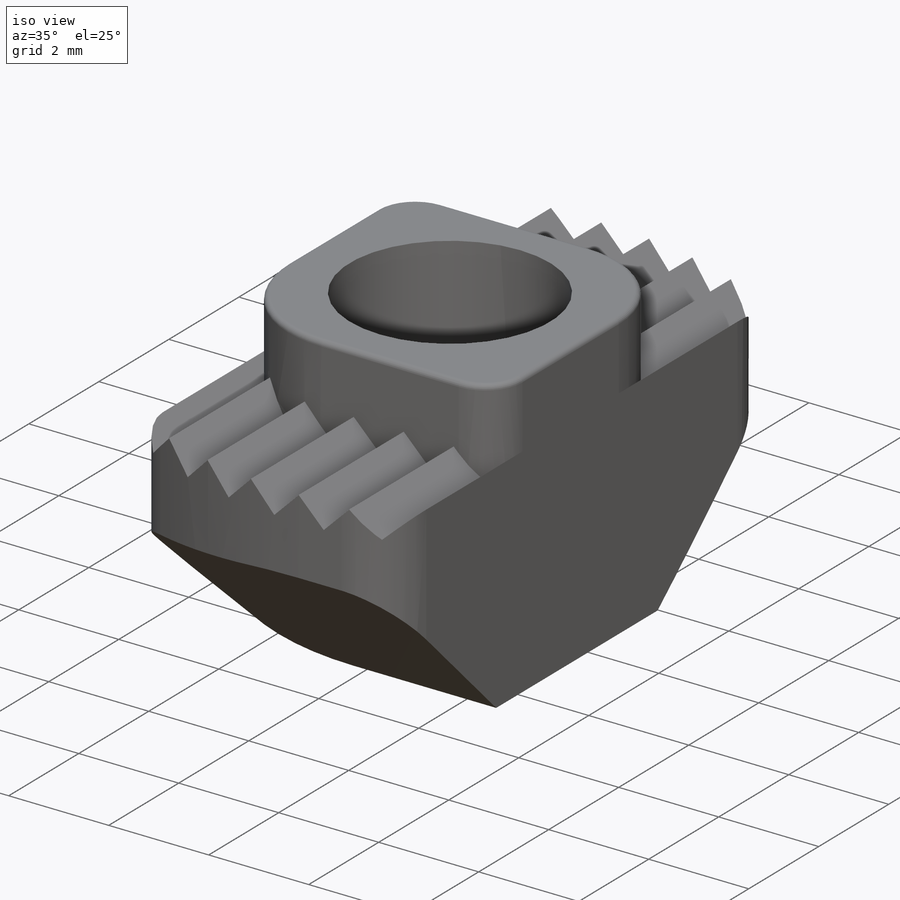
[diagram: iso view]
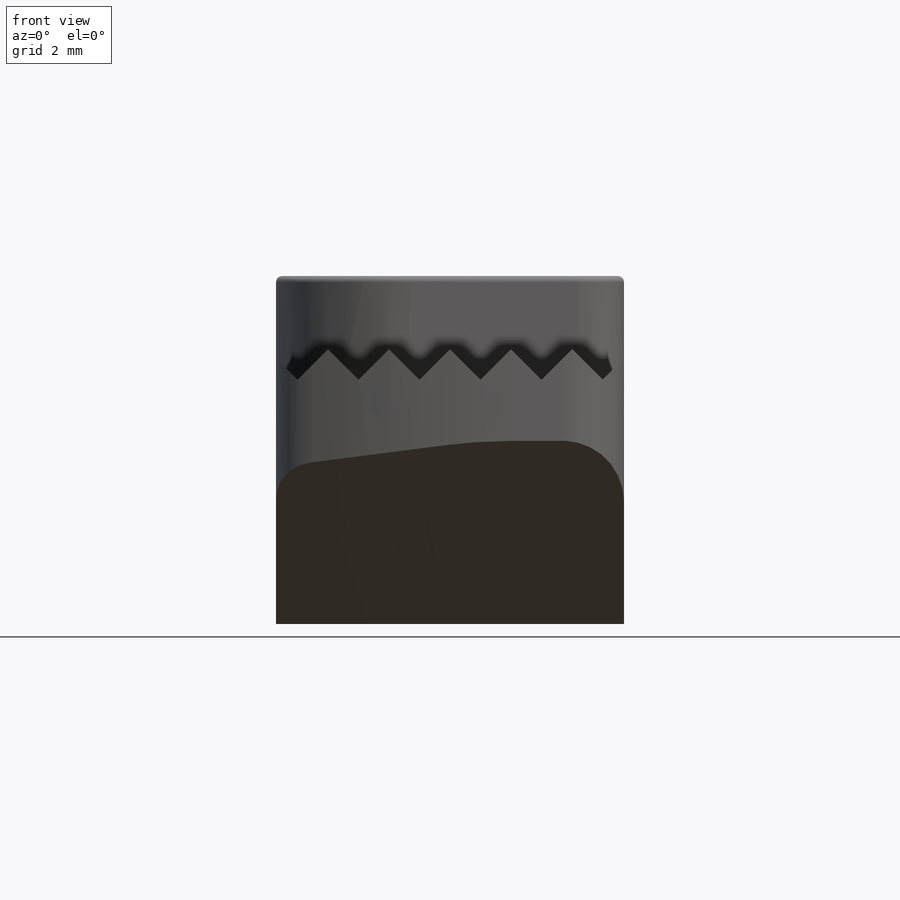
[diagram: front view]
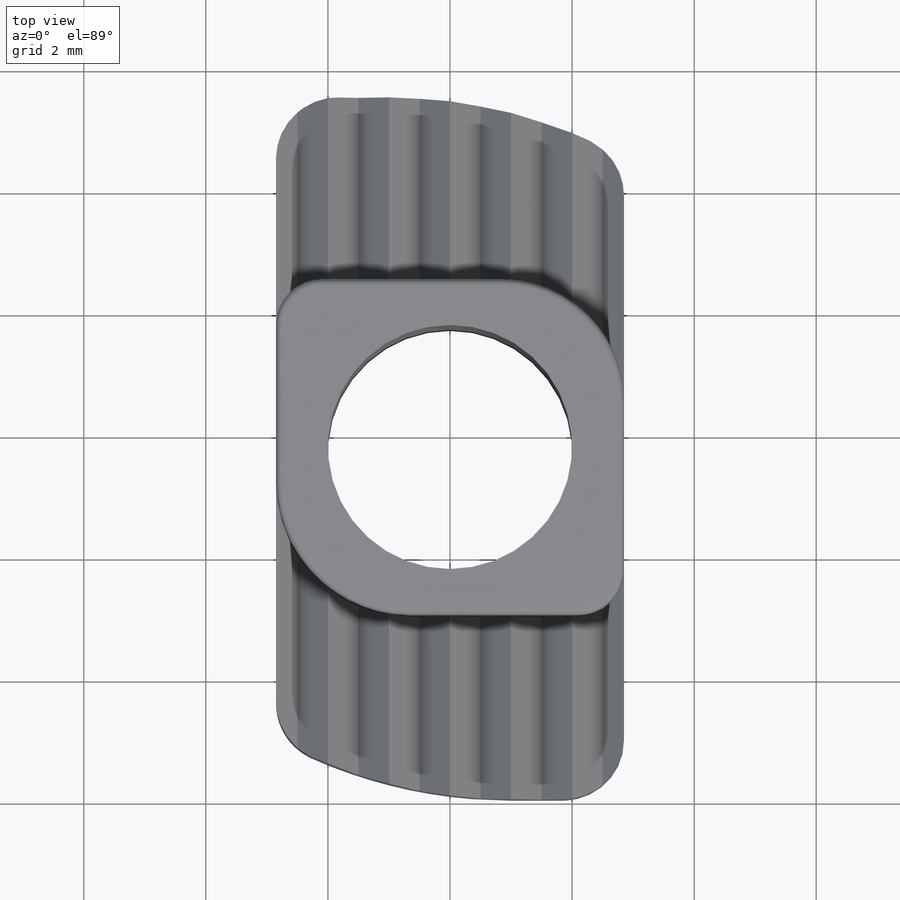
[diagram: top view]
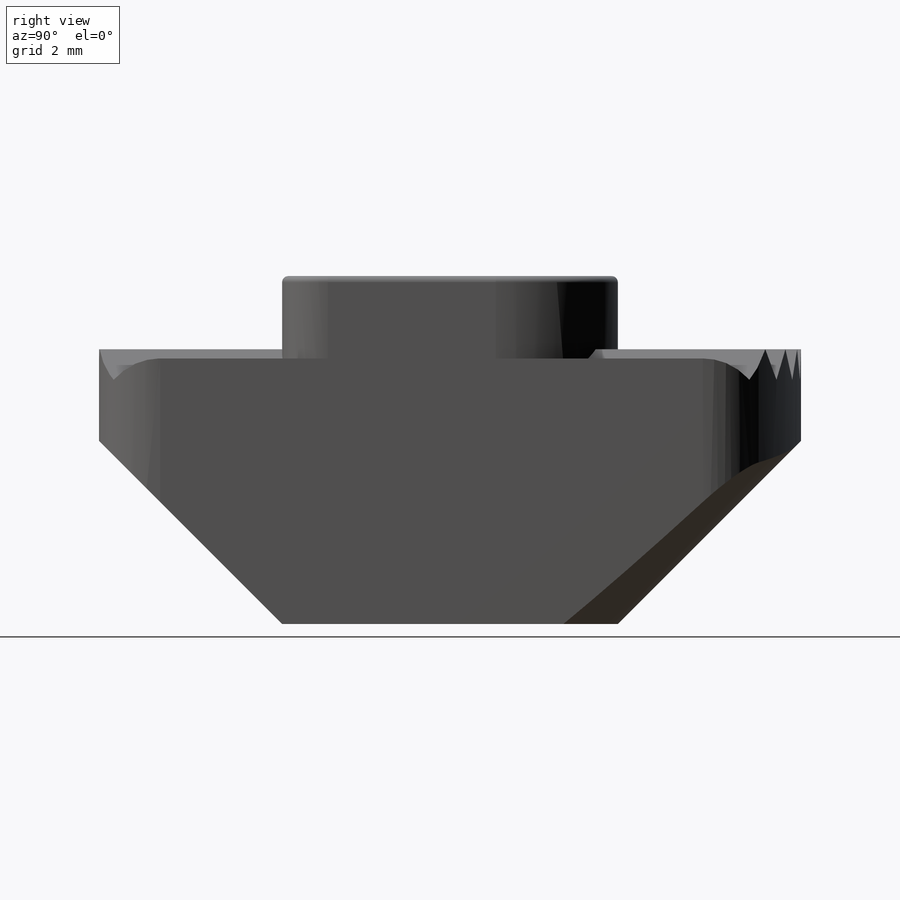
[diagram: right view]
SOLIDWORKS PART (.sldprt)
format: sldprt  version: not decoded by parser v0  size: 333,824 bytes
history: native  units: mm
features: sketch x7, cut_extrude x3, extrude x2, cut_revolve x2, material x1, fillet x1 (+12 scaffold rows collapsed)
feature tree (28):
  scaffold x12  (default folders/planes/origin — collapsed)
  material  "AISI 1020"
  sketch  "Sketch1"  dims[c1.D1=1.0mm c1.D2=1.0mm c2.D1=2.25mm c2.D2=2.25mm]
  extrude  "Extrude1"  Depth=4.5mm
  sketch  "Sketch2"
  cut_extrude  "Cut-Extrude1"  Depth=8mm
  sketch  "Sketch4"  dims[D1=3.0mm]
  cut_extrude  "Cut-Extrude2"  Depth=4mm
  sketch  "Sketch5"
  cut_revolve  "Cut-Revolve1"  Angle=60deg
  sketch  "Sketch6"
  cut_revolve  "Cut-Revolve2"  Angle=60deg
  sketch  "Sketch7"  dims[c1.D1=1.0mm c1.D2=1.0mm c2.D1=0.75mm c2.D2=1.7mm c3.D1=3.5mm c3.D2=1.7mm]
  extrude  "Extrude2"  Depth=5.5mm
  sketch  "Sketch10"
  cut_extrude  "Cut-Extrude4"  [1 undecoded]
  fillet  "Fillet1"  Radius=0.1mm
decode coverage: 10 of 15 modeling features carry decoded parameters
note: 1 parameter value undecoded
note: suppression state not decoded; provenance and decode notes live in map.json
